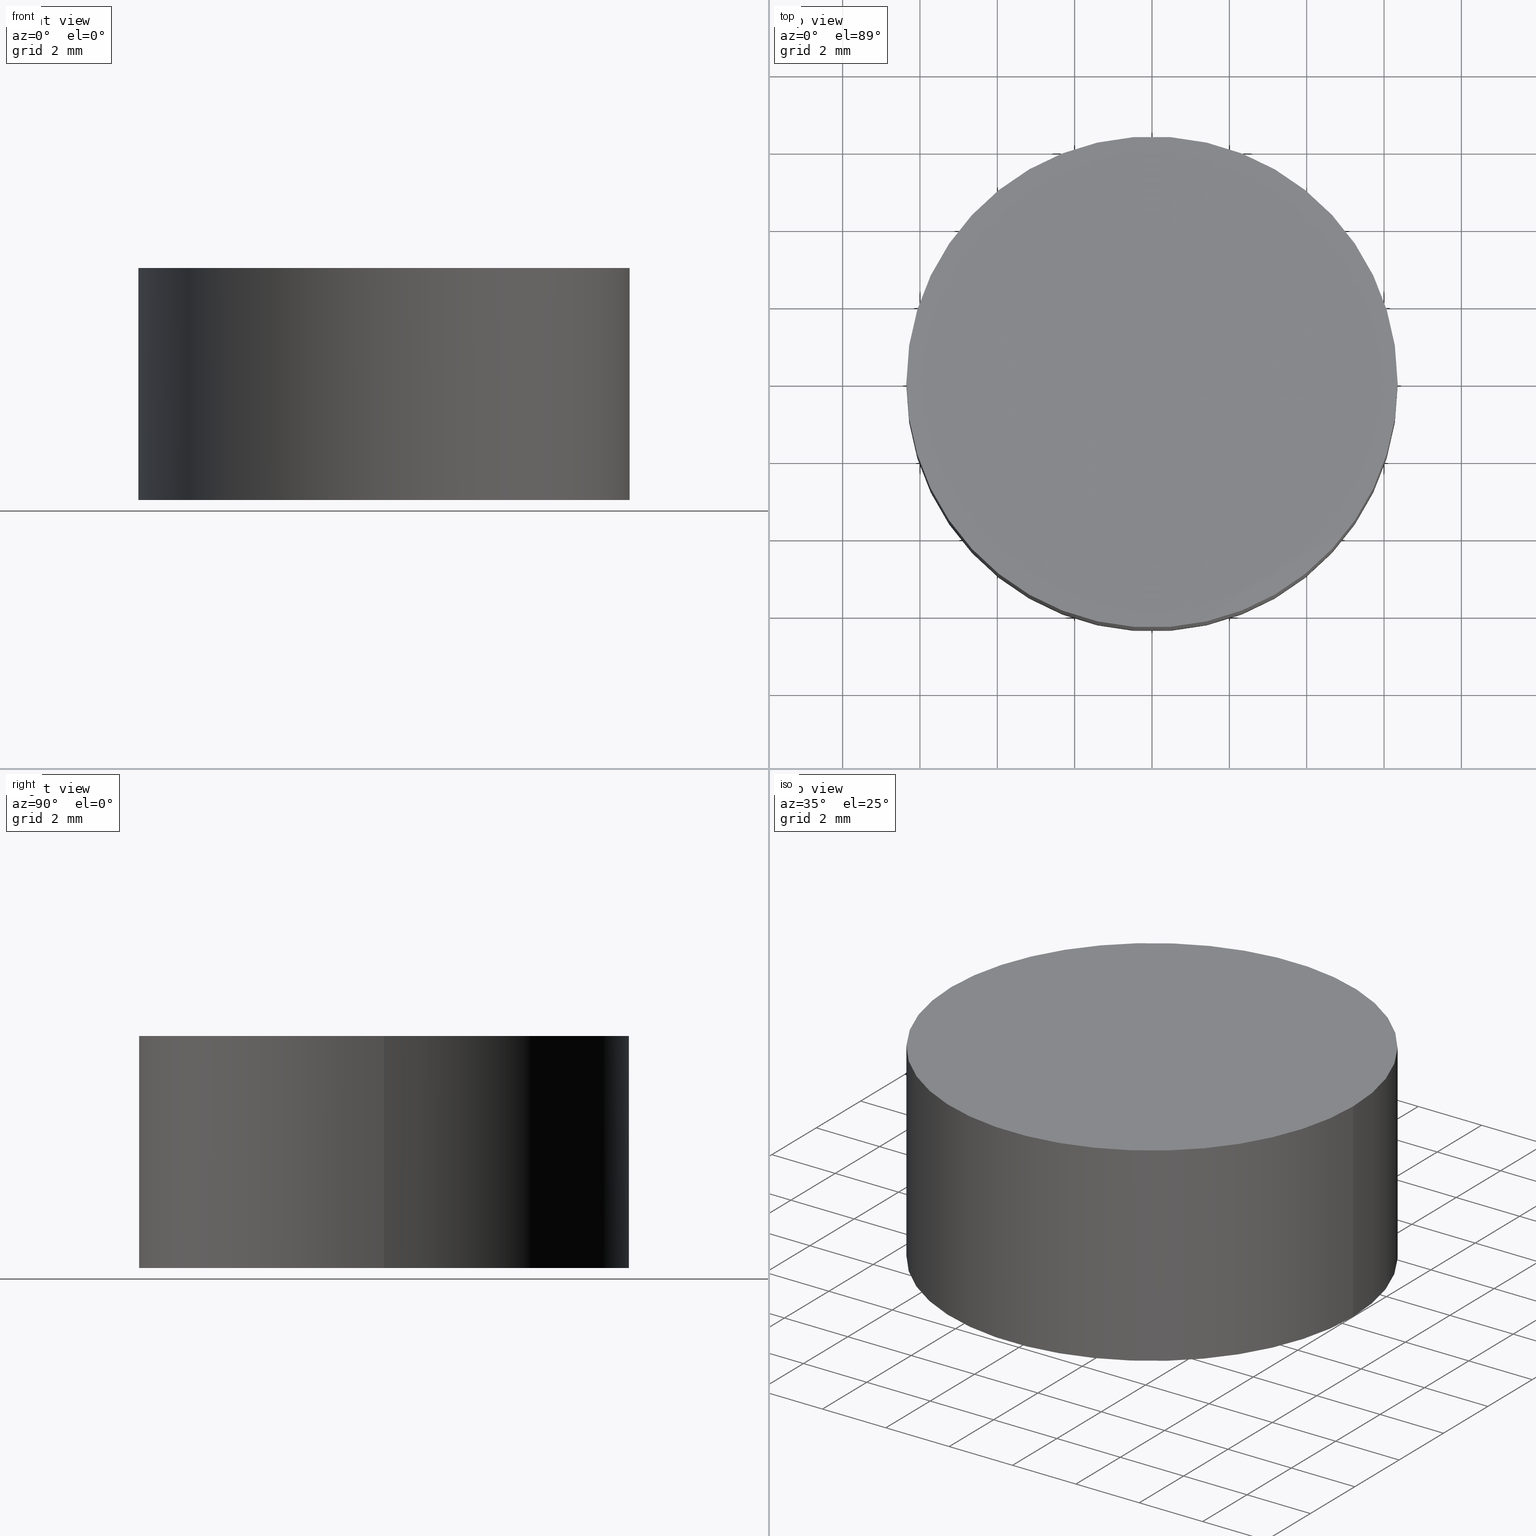
[diagram: canonical four-view strip — front | top / right | iso, engineering-drawing reading convention]
A machine part, canonical four-view strip (front | top / right | iso — engineering-drawing reading convention). The complete STEP part file that produces these views, byte-faithful:
ISO-10303-21;
HEADER;
FILE_DESCRIPTION (( 'STEP AP203' ),
    '1' );
FILE_NAME ('010-1125T6_UVFS_PCV_window.STEP',
    '2021-02-25T10:38:52',
    ( '' ),
    ( '' ),
    'SwSTEP 2.0',
    'SolidWorks 2019',
    '' );
FILE_SCHEMA (( 'CONFIG_CONTROL_DESIGN' ));
ENDSEC;

DATA;
#1 = LOCAL_TIME ( 12, 38, 52.00000000000000000, #56 ) ;
#2 = CC_DESIGN_PERSON_AND_ORGANIZATION_ASSIGNMENT ( #53, #4, ( #183 ) ) ;
#3 = CARTESIAN_POINT ( 'NONE',  ( 0.000000000000000000, 0.000000000000000000, 0.000000000000000000 ) ) ;
#4 = PERSON_AND_ORGANIZATION_ROLE ( 'design_owner' ) ;
#5 = CALENDAR_DATE ( 2021, 25, 2 ) ;
#6 = CALENDAR_DATE ( 2021, 25, 2 ) ;
#7 = CC_DESIGN_PERSON_AND_ORGANIZATION_ASSIGNMENT ( #45, #57, ( #47 ) ) ;
#8 = AXIS2_PLACEMENT_3D ( 'NONE', #16, #148, #93 ) ;
#9 = COORDINATED_UNIVERSAL_TIME_OFFSET ( 2, 0, .AHEAD. ) ;
#10 = CC_DESIGN_SECURITY_CLASSIFICATION ( #113, ( #100 ) ) ;
#11 = ORIENTED_EDGE ( 'NONE', *, *, #32, .F. ) ;
#12 = CC_DESIGN_APPROVAL ( #162, ( #100 ) ) ;
#13 = DESIGN_CONTEXT ( 'detailed design', #74, 'design' ) ;
#14 = DIRECTION ( 'NONE',  ( -0.000000000000000000, -0.000000000000000000, -1.000000000000000000 ) ) ;
#15 = DIRECTION ( 'NONE',  ( -1.000000000000000000, 0.000000000000000000, 0.000000000000000000 ) ) ;
#16 = CARTESIAN_POINT ( 'NONE',  ( 0.000000000000000000, 0.000000000000000000, 0.000000000000000000 ) ) ;
#17 = DIRECTION ( 'NONE',  ( 1.000000000000000000, 0.000000000000000000, 0.000000000000000000 ) ) ;
#18 = AXIS2_PLACEMENT_3D ( 'NONE', #3, #76, #65 ) ;
#19 = FACE_OUTER_BOUND ( 'NONE', #35, .T. ) ;
#20 = FACE_OUTER_BOUND ( 'NONE', #85, .T. ) ;
#21 = DIRECTION ( 'NONE',  ( 1.000000000000000000, 0.000000000000000000, 0.000000000000000000 ) ) ;
#22 = PERSON_AND_ORGANIZATION_ROLE ( 'design_supplier' ) ;
#23 = SECURITY_CLASSIFICATION_LEVEL ( 'unclassified' ) ;
#24 = ORGANIZATION ( 'UNSPECIFIED', 'UNSPECIFIED', '' ) ;
#25 = PERSON_AND_ORGANIZATION ( #119, #24 ) ;
#26 = ORIENTED_EDGE ( 'NONE', *, *, #121, .T. ) ;
#27 = ORIENTED_EDGE ( 'NONE', *, *, #43, .T. ) ;
#28 = CIRCLE ( 'NONE', #18, 6.349999999999999645 ) ;
#29 = VERTEX_POINT ( 'NONE', #50 ) ;
#30 = CLOSED_SHELL ( 'NONE', ( #110, #115, #66, #147, #178 ) ) ;
#31 = ORIENTED_EDGE ( 'NONE', *, *, #164, .T. ) ;
#32 = EDGE_CURVE ( 'NONE', #130, #104, #150, .T. ) ;
#33 = DIRECTION ( 'NONE',  ( -0.000000000000000000, -0.000000000000000000, -1.000000000000000000 ) ) ;
#34 = PERSON_AND_ORGANIZATION ( #119, #24 ) ;
#35 = EDGE_LOOP ( 'NONE', ( #165, #90, #161, #117 ) ) ;
#36 = AXIS2_PLACEMENT_3D ( 'NONE', #191, #122, #17 ) ;
#37 = DIRECTION ( 'NONE',  ( 0.000000000000000000, 0.000000000000000000, 1.000000000000000000 ) ) ;
#38 = LOCAL_TIME ( 12, 38, 52.00000000000000000, #112 ) ;
#39 = SHAPE_DEFINITION_REPRESENTATION ( #145, #42 ) ;
#40 = EDGE_CURVE ( 'NONE', #104, #29, #166, .T. ) ;
#41 = DATE_AND_TIME ( #6, #1 ) ;
#42 = ADVANCED_BREP_SHAPE_REPRESENTATION ( '010-1125T6_UVFS_PCV_window', ( #68, #198 ), #160 ) ;
#43 = EDGE_CURVE ( 'NONE', #130, #184, #118, .T. ) ;
#44 = AXIS2_PLACEMENT_3D ( 'NONE', #75, #107, #152 ) ;
#45 = PERSON_AND_ORGANIZATION ( #119, #24 ) ;
#46 = ORIENTED_EDGE ( 'NONE', *, *, #55, .F. ) ;
#47 = PRODUCT_DEFINITION ( 'UNKNOWN', '', #100, #13 ) ;
#48 = CIRCLE ( 'NONE', #44, 6.349999999988691357 ) ;
#49 = CARTESIAN_POINT ( 'NONE',  ( -6.349999999999999645, 0.000000000000000000, 6.000000000000000000 ) ) ;
#50 = CARTESIAN_POINT ( 'NONE',  ( 6.349999999999999645, 7.776507174585692163E-16, 0.000000000000000000 ) ) ;
#51 = DIRECTION ( 'NONE',  ( 1.000000000000000000, 0.000000000000000000, -0.000000000000000000 ) ) ;
#52 = LOCAL_TIME ( 12, 38, 52.00000000000000000, #9 ) ;
#53 = PERSON_AND_ORGANIZATION ( #119, #24 ) ;
#54 = CARTESIAN_POINT ( 'NONE',  ( 2.463307335887066074E-13, 0.000000000000000000, 2005.989919349595084 ) ) ;
#55 = EDGE_CURVE ( 'NONE', #184, #130, #48, .T. ) ;
#56 = COORDINATED_UNIVERSAL_TIME_OFFSET ( 2, 0, .AHEAD. ) ;
#57 = PERSON_AND_ORGANIZATION_ROLE ( 'creator' ) ;
#58 = APPROVAL_DATE_TIME ( #81, #189 ) ;
#59 = CC_DESIGN_DATE_AND_TIME_ASSIGNMENT ( #71, #142, ( #113 ) ) ;
#60 = ORIENTED_EDGE ( 'NONE', *, *, #121, .F. ) ;
#61 = VECTOR ( 'NONE', #33, 1000.000000000000000 ) ;
#62 = CARTESIAN_POINT ( 'NONE',  ( 3.687954135034419575E-13, 0.000000000000000000, 5.989919349595140829 ) ) ;
#63 = DIRECTION ( 'NONE',  ( 0.000000000000000000, -1.000000000000000000, -0.000000000000000000 ) ) ;
#64 = AXIS2_PLACEMENT_3D ( 'NONE', #168, #14, #132 ) ;
#65 = DIRECTION ( 'NONE',  ( 1.000000000000000000, 0.000000000000000000, 0.000000000000000000 ) ) ;
#66 = ADVANCED_FACE ( 'NONE', ( #19 ), #89, .T. ) ;
#67 = SPHERICAL_SURFACE ( 'NONE', #192, 2000.000000000000000 ) ;
#68 = MANIFOLD_SOLID_BREP ( 'Cut-Revolve1', #30 ) ;
#69 = CALENDAR_DATE ( 2021, 25, 2 ) ;
#70 = PERSON_AND_ORGANIZATION_ROLE ( 'classification_officer' ) ;
#71 = DATE_AND_TIME ( #69, #134 ) ;
#72 = DIRECTION ( 'NONE',  ( -0.000000000000000000, -0.000000000000000000, -1.000000000000000000 ) ) ;
#73 = DIRECTION ( 'NONE',  ( 0.000000000000000000, 1.000000000000000000, -0.000000000000000000 ) ) ;
#74 = APPLICATION_CONTEXT ( 'configuration controlled 3d designs of mechanical parts and assemblies' ) ;
#75 = CARTESIAN_POINT ( 'NONE',  ( 2.463307335887066074E-13, 0.000000000000000000, 6.000000000000005329 ) ) ;
#76 = DIRECTION ( 'NONE',  ( 0.000000000000000000, 0.000000000000000000, 1.000000000000000000 ) ) ;
#77 = DIRECTION ( 'NONE',  ( -0.000000000000000000, -0.000000000000000000, -1.000000000000000000 ) ) ;
#78 = MECHANICAL_CONTEXT ( 'NONE', #181, 'mechanical' ) ;
#79 = EDGE_CURVE ( 'NONE', #184, #29, #200, .T. ) ;
#80 = DATE_AND_TIME ( #114, #38 ) ;
#81 = DATE_AND_TIME ( #156, #146 ) ;
#82 = AXIS2_PLACEMENT_3D ( 'NONE', #54, #73, #37 ) ;
#83 = DATE_AND_TIME ( #5, #52 ) ;
#84 = COORDINATED_UNIVERSAL_TIME_OFFSET ( 2, 0, .AHEAD. ) ;
#85 = EDGE_LOOP ( 'NONE', ( #88, #46, #199 ) ) ;
#86 = CC_DESIGN_PERSON_AND_ORGANIZATION_ASSIGNMENT ( #99, #159, ( #100 ) ) ;
#87 = EDGE_LOOP ( 'NONE', ( #131, #31, #170 ) ) ;
#88 = ORIENTED_EDGE ( 'NONE', *, *, #164, .F. ) ;
#89 = CYLINDRICAL_SURFACE ( 'NONE', #64, 6.349999999999999645 ) ;
#90 = ORIENTED_EDGE ( 'NONE', *, *, #55, .T. ) ;
#91 = APPROVAL_ROLE ( '' ) ;
#92 = CC_DESIGN_PERSON_AND_ORGANIZATION_ASSIGNMENT ( #177, #70, ( #113 ) ) ;
#93 = DIRECTION ( 'NONE',  ( 1.000000000000000000, 0.000000000000000000, 0.000000000000000000 ) ) ;
#94 = CARTESIAN_POINT ( 'NONE',  ( 6.349999999988937383, 7.776507174578918806E-16, 6.000000000000005329 ) ) ;
#95 = CARTESIAN_POINT ( 'NONE',  ( 0.000000000000000000, 0.000000000000000000, 0.000000000000000000 ) ) ;
#96 = COORDINATED_UNIVERSAL_TIME_OFFSET ( 2, 0, .AHEAD. ) ;
#97 = APPROVAL_ROLE ( '' ) ;
#98 = AXIS2_PLACEMENT_3D ( 'NONE', #124, #190, #51 ) ;
#99 = PERSON_AND_ORGANIZATION ( #119, #24 ) ;
#100 = PRODUCT_DEFINITION_FORMATION_WITH_SPECIFIED_SOURCE ( 'ANY', '', #183, .NOT_KNOWN. ) ;
#101 = VERTEX_POINT ( 'NONE', #62 ) ;
#102 = UNCERTAINTY_MEASURE_WITH_UNIT (LENGTH_MEASURE( 1.000000000000000082E-05 ), #153, 'distance_accuracy_value', 'NONE');
#103 = APPROVAL_PERSON_ORGANIZATION ( #144, #162, #97 ) ;
#104 = VERTEX_POINT ( 'NONE', #136 ) ;
#105 = CARTESIAN_POINT ( 'NONE',  ( 6.349999999999999645, 7.776507174585692163E-16, 6.000000000000000000 ) ) ;
#106 = APPLICATION_PROTOCOL_DEFINITION ( 'international standard', 'config_control_design', 1994, #181 ) ;
#107 = DIRECTION ( 'NONE',  ( -0.000000000000000000, -0.000000000000000000, -1.000000000000000000 ) ) ;
#108 = CARTESIAN_POINT ( 'NONE',  ( 0.000000000000000000, 0.000000000000000000, 6.000000000000000000 ) ) ;
#109 = CIRCLE ( 'NONE', #143, 2000.000000000000000 ) ;
#110 = ADVANCED_FACE ( 'NONE', ( #169 ), #149, .F. ) ;
#111 = FACE_OUTER_BOUND ( 'NONE', #120, .T. ) ;
#112 = COORDINATED_UNIVERSAL_TIME_OFFSET ( 2, 0, .AHEAD. ) ;
#113 = SECURITY_CLASSIFICATION ( '', '', #23 ) ;
#114 = CALENDAR_DATE ( 2021, 25, 2 ) ;
#115 = ADVANCED_FACE ( 'NONE', ( #193 ), #173, .T. ) ;
#116 = APPROVAL_DATE_TIME ( #83, #162 ) ;
#117 = ORIENTED_EDGE ( 'NONE', *, *, #40, .T. ) ;
#118 = CIRCLE ( 'NONE', #163, 6.349999999988691357 ) ;
#119 = PERSON ( 'UNSPECIFIED', 'UNSPECIFIED', 'UNSPECIFIED', ('UNSPECIFIED'), ('UNSPECIFIED'), ('UNSPECIFIED') ) ;
#120 = EDGE_LOOP ( 'NONE', ( #187, #60 ) ) ;
#121 = EDGE_CURVE ( 'NONE', #29, #104, #28, .T. ) ;
#122 = DIRECTION ( 'NONE',  ( 0.000000000000000000, -1.000000000000000000, -0.000000000000000000 ) ) ;
#123 = DIRECTION ( 'NONE',  ( 1.000000000000000000, 0.000000000000000000, 0.000000000000000000 ) ) ;
#124 = CARTESIAN_POINT ( 'NONE',  ( 0.000000000000000000, 0.000000000000000000, 0.000000000000000000 ) ) ;
#125 = APPLICATION_PROTOCOL_DEFINITION ( 'international standard', 'config_control_design', 1994, #74 ) ;
#126 = CC_DESIGN_PERSON_AND_ORGANIZATION_ASSIGNMENT ( #25, #22, ( #100 ) ) ;
#127 = APPROVAL_STATUS ( 'not_yet_approved' ) ;
#128 = DATE_TIME_ROLE ( 'creation_date' ) ;
#129 = CC_DESIGN_APPROVAL ( #175, ( #47 ) ) ;
#130 = VERTEX_POINT ( 'NONE', #174 ) ;
#131 = ORIENTED_EDGE ( 'NONE', *, *, #43, .F. ) ;
#132 = DIRECTION ( 'NONE',  ( -1.000000000000000000, 0.000000000000000000, 0.000000000000000000 ) ) ;
#133 = PLANE ( 'NONE',  #98 ) ;
#134 = LOCAL_TIME ( 12, 38, 52.00000000000000000, #84 ) ;
#135 = CARTESIAN_POINT ( 'NONE',  ( 2.463307335887066074E-13, 0.000000000000000000, 6.000000000000005329 ) ) ;
#136 = CARTESIAN_POINT ( 'NONE',  ( -6.349999999999999645, 0.000000000000000000, 0.000000000000000000 ) ) ;
#137 = PRODUCT_RELATED_PRODUCT_CATEGORY ( 'detail', '', ( #183 ) ) ;
#138 = DIRECTION ( 'NONE',  ( 1.224646799147353207E-16, -1.000000000000000000, 0.000000000000000000 ) ) ;
#139 =( NAMED_UNIT ( * ) PLANE_ANGLE_UNIT ( ) SI_UNIT ( $, .RADIAN. ) );
#140 = PERSON_AND_ORGANIZATION ( #119, #24 ) ;
#141 = EDGE_CURVE ( 'NONE', #184, #101, #180, .T. ) ;
#142 = DATE_TIME_ROLE ( 'classification_date' ) ;
#143 = AXIS2_PLACEMENT_3D ( 'NONE', #201, #138, #176 ) ;
#144 = PERSON_AND_ORGANIZATION ( #119, #24 ) ;
#145 = PRODUCT_DEFINITION_SHAPE ( 'NONE', 'NONE',  #47 ) ;
#146 = LOCAL_TIME ( 12, 38, 52.00000000000000000, #96 ) ;
#147 = ADVANCED_FACE ( 'NONE', ( #111 ), #133, .F. ) ;
#148 = DIRECTION ( 'NONE',  ( 0.000000000000000000, 0.000000000000000000, 1.000000000000000000 ) ) ;
#149 = SPHERICAL_SURFACE ( 'NONE', #36, 2000.000000000000000 ) ;
#150 = LINE ( 'NONE', #49, #195 ) ;
#151 = CARTESIAN_POINT ( 'NONE',  ( 2.463307335887066074E-13, 0.000000000000000000, 2005.989919349595084 ) ) ;
#152 = DIRECTION ( 'NONE',  ( 1.000000000000000000, 0.000000000000000000, 0.000000000000000000 ) ) ;
#153 =( LENGTH_UNIT ( ) NAMED_UNIT ( * ) SI_UNIT ( .MILLI., .METRE. ) );
#154 = DIRECTION ( 'NONE',  ( 0.000000000000000000, 0.000000000000000000, 1.000000000000000000 ) ) ;
#155 = APPROVAL_PERSON_ORGANIZATION ( #140, #189, #196 ) ;
#156 = CALENDAR_DATE ( 2021, 25, 2 ) ;
#157 = CC_DESIGN_DATE_AND_TIME_ASSIGNMENT ( #80, #128, ( #47 ) ) ;
#158 = APPROVAL_DATE_TIME ( #41, #175 ) ;
#159 = PERSON_AND_ORGANIZATION_ROLE ( 'creator' ) ;
#160 =( GEOMETRIC_REPRESENTATION_CONTEXT ( 3 ) GLOBAL_UNCERTAINTY_ASSIGNED_CONTEXT ( ( #102 ) ) GLOBAL_UNIT_ASSIGNED_CONTEXT ( ( #153, #139, #188 ) ) REPRESENTATION_CONTEXT ( 'NONE', 'WORKASPACE' ) );
#161 = ORIENTED_EDGE ( 'NONE', *, *, #32, .T. ) ;
#162 = APPROVAL ( #179, 'UNSPECIFIED' ) ;
#163 = AXIS2_PLACEMENT_3D ( 'NONE', #135, #72, #123 ) ;
#164 = EDGE_CURVE ( 'NONE', #130, #101, #109, .T. ) ;
#165 = ORIENTED_EDGE ( 'NONE', *, *, #79, .F. ) ;
#166 = CIRCLE ( 'NONE', #8, 6.349999999999999645 ) ;
#167 = ORIENTED_EDGE ( 'NONE', *, *, #79, .T. ) ;
#168 = CARTESIAN_POINT ( 'NONE',  ( 0.000000000000000000, 0.000000000000000000, 6.000000000000000000 ) ) ;
#169 = FACE_OUTER_BOUND ( 'NONE', #87, .T. ) ;
#170 = ORIENTED_EDGE ( 'NONE', *, *, #141, .F. ) ;
#171 = DIRECTION ( 'NONE',  ( 1.000000000000000000, 0.000000000000000000, 0.000000000000000000 ) ) ;
#172 = AXIS2_PLACEMENT_3D ( 'NONE', #108, #77, #15 ) ;
#173 = CYLINDRICAL_SURFACE ( 'NONE', #172, 6.349999999999999645 ) ;
#174 = CARTESIAN_POINT ( 'NONE',  ( -6.349999999988444443, 0.000000000000000000, 6.000000000000005329 ) ) ;
#175 = APPROVAL ( #194, 'UNSPECIFIED' ) ;
#176 = DIRECTION ( 'NONE',  ( 1.000000000000000000, 1.224646799147353207E-16, 0.000000000000000000 ) ) ;
#177 = PERSON_AND_ORGANIZATION ( #119, #24 ) ;
#178 = ADVANCED_FACE ( 'NONE', ( #20 ), #67, .F. ) ;
#179 = APPROVAL_STATUS ( 'not_yet_approved' ) ;
#180 = CIRCLE ( 'NONE', #82, 2000.000000000000000 ) ;
#181 = APPLICATION_CONTEXT ( 'configuration controlled 3d designs of mechanical parts and assemblies' ) ;
#182 = EDGE_LOOP ( 'NONE', ( #27, #167, #26, #11 ) ) ;
#183 = PRODUCT ( '010-1125T6_UVFS_PCV_window', '010-1125T6_UVFS_PCV_window', '', ( #78 ) ) ;
#184 = VERTEX_POINT ( 'NONE', #94 ) ;
#185 = DIRECTION ( 'NONE',  ( -0.000000000000000000, -0.000000000000000000, -1.000000000000000000 ) ) ;
#186 = CC_DESIGN_APPROVAL ( #189, ( #113 ) ) ;
#187 = ORIENTED_EDGE ( 'NONE', *, *, #40, .F. ) ;
#188 =( NAMED_UNIT ( * ) SI_UNIT ( $, .STERADIAN. ) SOLID_ANGLE_UNIT ( ) );
#189 = APPROVAL ( #127, 'UNSPECIFIED' ) ;
#190 = DIRECTION ( 'NONE',  ( 0.000000000000000000, 0.000000000000000000, 1.000000000000000000 ) ) ;
#191 = CARTESIAN_POINT ( 'NONE',  ( 2.463307335887066074E-13, 0.000000000000000000, 2005.989919349595084 ) ) ;
#192 = AXIS2_PLACEMENT_3D ( 'NONE', #151, #63, #171 ) ;
#193 = FACE_OUTER_BOUND ( 'NONE', #182, .T. ) ;
#194 = APPROVAL_STATUS ( 'not_yet_approved' ) ;
#195 = VECTOR ( 'NONE', #185, 1000.000000000000000 ) ;
#196 = APPROVAL_ROLE ( '' ) ;
#197 = APPROVAL_PERSON_ORGANIZATION ( #34, #175, #91 ) ;
#198 = AXIS2_PLACEMENT_3D ( 'NONE', #95, #154, #21 ) ;
#199 = ORIENTED_EDGE ( 'NONE', *, *, #141, .T. ) ;
#200 = LINE ( 'NONE', #105, #61 ) ;
#201 = CARTESIAN_POINT ( 'NONE',  ( 2.463307335887066074E-13, 0.000000000000000000, 2005.989919349595084 ) ) ;
ENDSEC;
END-ISO-10303-21;
